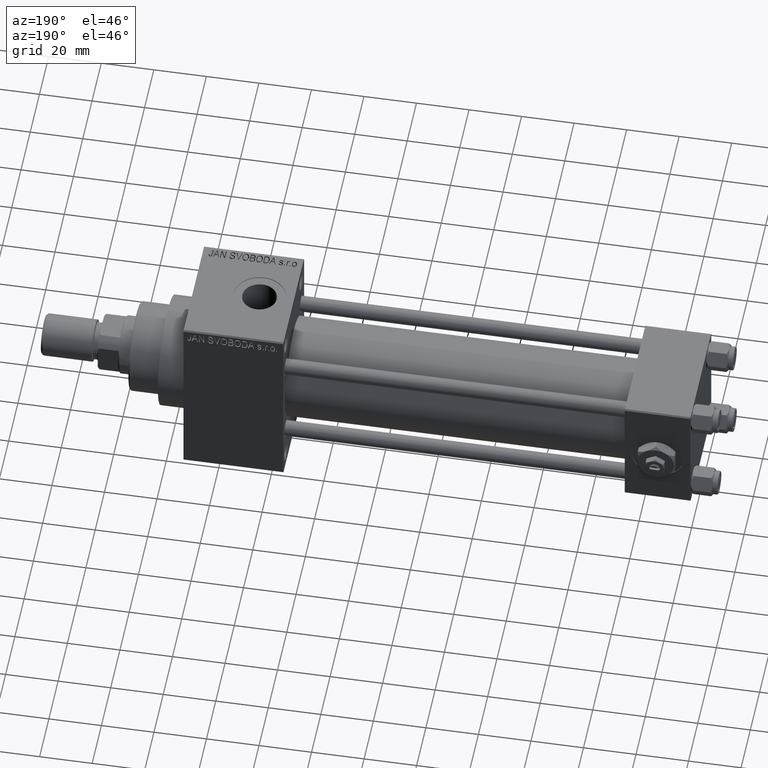
[diagram: clean part render]
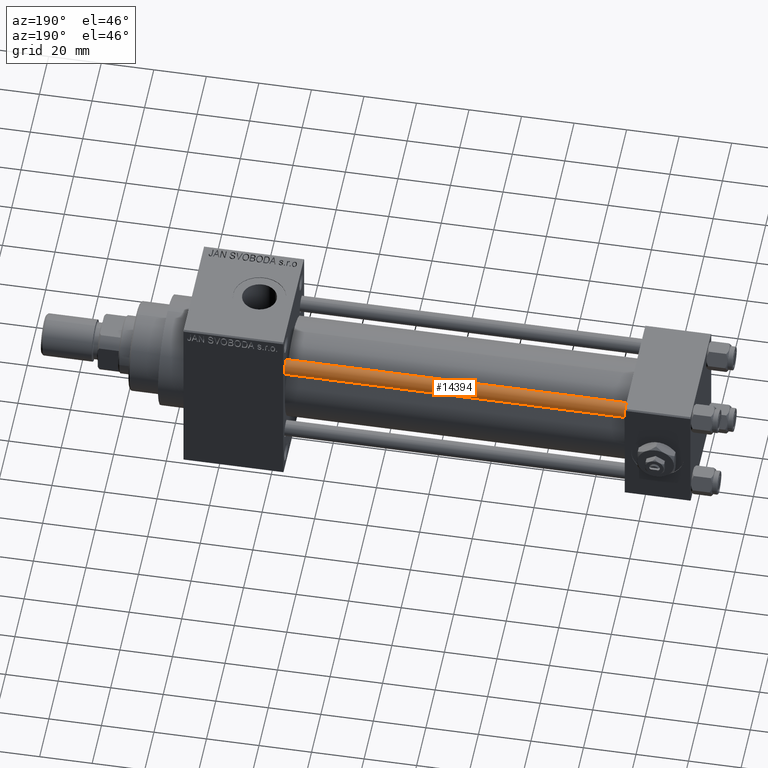
[diagram: same view with one face highlighted and labeled with its STEP entity id]
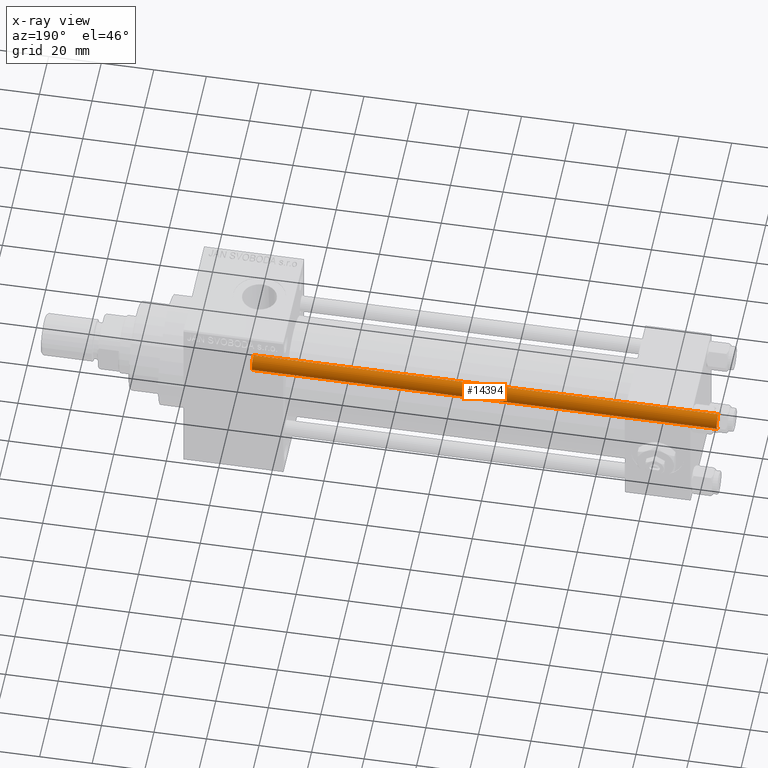
[diagram: x-ray of the same camera — body ghosted, the highlighted face saturated]
A machine part, auxiliary view. The second image highlights one B-rep face of the part: STEP entity #14394.
The next image is the same camera in x-ray: the body ghosted, the highlighted face saturated — about 0% of this face is hidden behind the body in this view.
In plain terms, the highlighted cylindrical surface (edge-blend (fillet) strip) has radius 3 mm, axis along (-1, -0, 0).
Its self-contained STEP definition (entity closure, byte-faithful):
#3305 = EDGE_CURVE ( 'NONE', #39022, #4447, #15626, .T. ) ;
#3786 = EDGE_CURVE ( 'NONE', #4447, #36956, #24364, .T. ) ;
#4447 = VERTEX_POINT ( 'NONE', #35879 ) ;
#5319 = VECTOR ( 'NONE', #38501, 1000.000000000000000 ) ;
#7123 = CYLINDRICAL_SURFACE ( 'NONE', #21563, 3.000000000000000444 ) ;
#7752 = VERTEX_POINT ( 'NONE', #13076 ) ;
#8044 = DIRECTION ( 'NONE',  ( 1.000000000000000000, 0.000000000000000000, 0.000000000000000000 ) ) ;
#11721 = DIRECTION ( 'NONE',  ( 1.000000000000000000, 0.000000000000000000, 0.000000000000000000 ) ) ;
#13076 = CARTESIAN_POINT ( 'NONE',  ( -3.000000000000000444, 0.000000000000000000, 0.5000000000000281997 ) ) ;
#13172 = DIRECTION ( 'NONE',  ( -0.000000000000000000, -0.000000000000000000, -1.000000000000000000 ) ) ;
#14394 = ADVANCED_FACE ( 'NONE', ( #45049 ), #7123, .T. ) ;
#15626 = CIRCLE ( 'NONE', #31440, 3.000000000000000444 ) ;
#17386 = CIRCLE ( 'NONE', #49044, 3.000000000000000444 ) ;
#17388 = LINE ( 'NONE', #27809, #29288 ) ;
#18026 = DIRECTION ( 'NONE',  ( -1.000000000000000000, 0.000000000000000000, 0.000000000000000000 ) ) ;
#18277 = CARTESIAN_POINT ( 'NONE',  ( 0.000000000000000000, 0.000000000000000000, 178.0000000000000000 ) ) ;
#19007 = DIRECTION ( 'NONE',  ( -0.000000000000000000, -0.000000000000000000, -1.000000000000000000 ) ) ;
#20088 = CARTESIAN_POINT ( 'NONE',  ( -3.000000000000000444, 0.000000000000000000, 177.5000000000000000 ) ) ;
#21563 = AXIS2_PLACEMENT_3D ( 'NONE', #18277, #19007, #18026 ) ;
#24364 = LINE ( 'NONE', #39230, #5319 ) ;
#25292 = ORIENTED_EDGE ( 'NONE', *, *, #3305, .T. ) ;
#27107 = CARTESIAN_POINT ( 'NONE',  ( 0.000000000000000000, 0.000000000000000000, 0.5000000000000281997 ) ) ;
#27809 = CARTESIAN_POINT ( 'NONE',  ( -3.000000000000000444, 0.000000000000000000, 178.0000000000000000 ) ) ;
#29288 = VECTOR ( 'NONE', #13172, 1000.000000000000000 ) ;
#30280 = ORIENTED_EDGE ( 'NONE', *, *, #42782, .F. ) ;
#31040 = ORIENTED_EDGE ( 'NONE', *, *, #3786, .T. ) ;
#31440 = AXIS2_PLACEMENT_3D ( 'NONE', #42009, #41271, #8044 ) ;
#34521 = DIRECTION ( 'NONE',  ( -0.000000000000000000, -0.000000000000000000, 1.000000000000000000 ) ) ;
#35542 = CARTESIAN_POINT ( 'NONE',  ( 3.000000000000000444, 3.673940397442060361E-16, 0.5000000000000281997 ) ) ;
#35879 = CARTESIAN_POINT ( 'NONE',  ( 3.000000000000000444, 3.673940397442060361E-16, 177.5000000000000000 ) ) ;
#36956 = VERTEX_POINT ( 'NONE', #35542 ) ;
#38501 = DIRECTION ( 'NONE',  ( -0.000000000000000000, -0.000000000000000000, -1.000000000000000000 ) ) ;
#39022 = VERTEX_POINT ( 'NONE', #20088 ) ;
#39230 = CARTESIAN_POINT ( 'NONE',  ( 3.000000000000000444, 3.673940397442060361E-16, 178.0000000000000000 ) ) ;
#41271 = DIRECTION ( 'NONE',  ( 0.000000000000000000, 0.000000000000000000, -1.000000000000000000 ) ) ;
#42009 = CARTESIAN_POINT ( 'NONE',  ( 0.000000000000000000, 0.000000000000000000, 177.5000000000000000 ) ) ;
#42782 = EDGE_CURVE ( 'NONE', #39022, #7752, #17388, .T. ) ;
#43689 = EDGE_LOOP ( 'NONE', ( #25292, #31040, #45259, #30280 ) ) ;
#45049 = FACE_OUTER_BOUND ( 'NONE', #43689, .T. ) ;
#45259 = ORIENTED_EDGE ( 'NONE', *, *, #45498, .T. ) ;
#45498 = EDGE_CURVE ( 'NONE', #36956, #7752, #17386, .T. ) ;
#49044 = AXIS2_PLACEMENT_3D ( 'NONE', #27107, #34521, #11721 ) ;